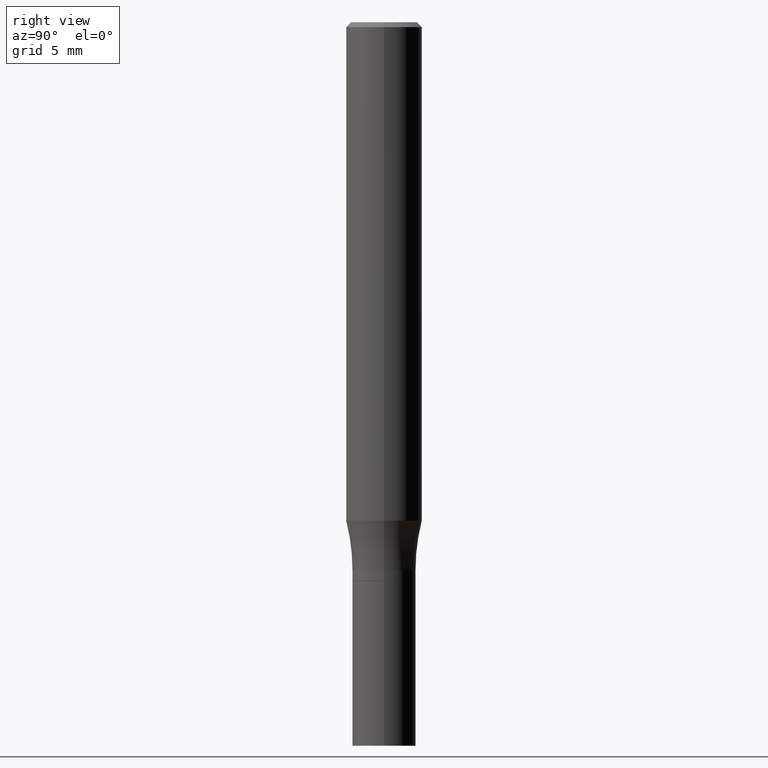
[diagram: clean part render]
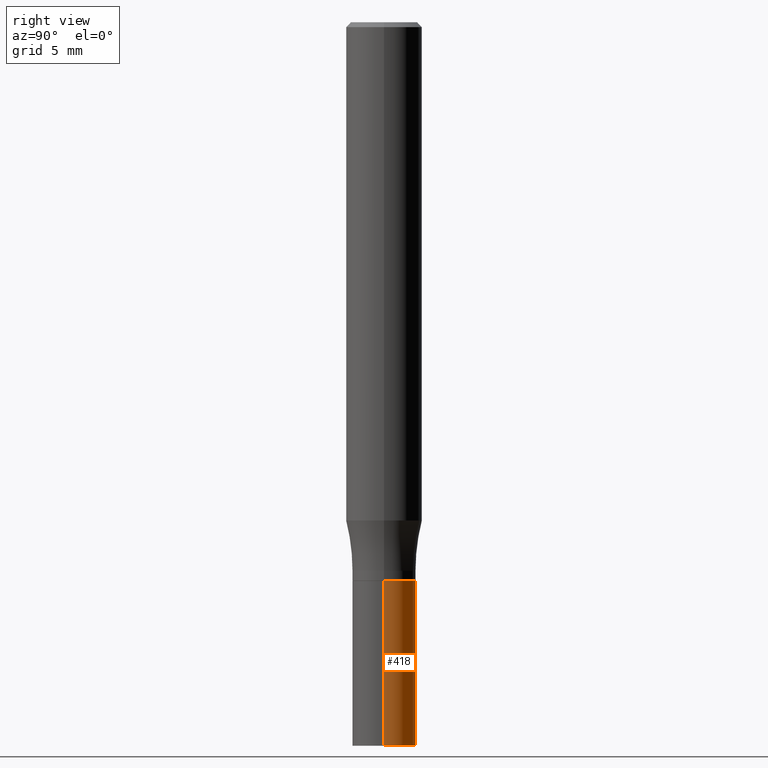
[diagram: same view with one face highlighted and labeled with its STEP entity id]
A machine part, right view. The second image highlights one B-rep face of the part: STEP entity #418.
In plain terms, the highlighted cylindrical surface (edge-blend (fillet) strip) has radius 2.5006 mm, axis along (-0, 0, 1).
Its self-contained STEP definition (entity closure, byte-faithful):
#6 = CARTESIAN_POINT ( 'NONE',  ( 4.236285612954512392E-29, -6.048293123277981078E-15, -1.732299999999999951 ) ) ;
#8 = VECTOR ( 'NONE', #30, 39.37007874015748143 ) ;
#11 = FACE_OUTER_BOUND ( 'NONE', #195, .T. ) ;
#18 = ORIENTED_EDGE ( 'NONE', *, *, #454, .F. ) ;
#21 = AXIS2_PLACEMENT_3D ( 'NONE', #6, #402, #150 ) ;
#29 = AXIS2_PLACEMENT_3D ( 'NONE', #259, #412, #329 ) ;
#30 = DIRECTION ( 'NONE',  ( -2.445468806185136877E-29, 3.491481338843145188E-15, 1.000000000000000000 ) ) ;
#51 = LINE ( 'NONE', #332, #8 ) ;
#71 = DIRECTION ( 'NONE',  ( -2.445468806185136877E-29, 3.491481338843145188E-15, 1.000000000000000000 ) ) ;
#101 = EDGE_CURVE ( 'NONE', #186, #359, #216, .T. ) ;
#133 = CARTESIAN_POINT ( 'NONE',  ( 0.09845000000000000973, -6.735765798896194427E-15, -1.732299999999999951 ) ) ;
#150 = DIRECTION ( 'NONE',  ( 1.000000000000000000, -6.982962677686265133E-15, 0.000000000000000000 ) ) ;
#154 = CARTESIAN_POINT ( 'NONE',  ( -0.09845000000000000973, -6.242233874532123993E-15, -1.732299999999999951 ) ) ;
#156 = ORIENTED_EDGE ( 'NONE', *, *, #101, .T. ) ;
#161 = CARTESIAN_POINT ( 'NONE',  ( 0.09845000000000000973, -8.522705948116114900E-15, -2.244099999999999984 ) ) ;
#186 = VERTEX_POINT ( 'NONE', #161 ) ;
#193 = CYLINDRICAL_SURFACE ( 'NONE', #29, 0.09845000000000000973 ) ;
#195 = EDGE_LOOP ( 'NONE', ( #156, #267, #18, #427 ) ) ;
#197 = VERTEX_POINT ( 'NONE', #154 ) ;
#216 = CIRCLE ( 'NONE', #244, 0.09845000000000000973 ) ;
#236 = EDGE_CURVE ( 'NONE', #186, #307, #51, .T. ) ;
#237 = DIRECTION ( 'NONE',  ( 1.000000000000000000, -6.982962677686265133E-15, 0.000000000000000000 ) ) ;
#244 = AXIS2_PLACEMENT_3D ( 'NONE', #457, #271, #237 ) ;
#259 = CARTESIAN_POINT ( 'NONE',  ( 0.000000000000000000, 0.000000000000000000, 0.000000000000000000 ) ) ;
#267 = ORIENTED_EDGE ( 'NONE', *, *, #315, .T. ) ;
#271 = DIRECTION ( 'NONE',  ( -2.445468806185136597E-29, 3.491481338843145583E-15, 1.000000000000000000 ) ) ;
#307 = VERTEX_POINT ( 'NONE', #133 ) ;
#314 = CARTESIAN_POINT ( 'NONE',  ( -0.09845000000000000973, 6.995293233558187021E-16, -4.842691596355954742E-30 ) ) ;
#315 = EDGE_CURVE ( 'NONE', #359, #197, #317, .T. ) ;
#317 = LINE ( 'NONE', #314, #366 ) ;
#329 = DIRECTION ( 'NONE',  ( 1.000000000000000000, -6.982962677686266711E-15, 4.876176775795935793E-29 ) ) ;
#332 = CARTESIAN_POINT ( 'NONE',  ( 0.09845000000000000973, -6.874726756182130531E-16, 4.800596035771099214E-30 ) ) ;
#359 = VERTEX_POINT ( 'NONE', #445 ) ;
#366 = VECTOR ( 'NONE', #71, 39.37007874015748143 ) ;
#402 = DIRECTION ( 'NONE',  ( -2.445468806185136597E-29, 3.491481338843145583E-15, 1.000000000000000000 ) ) ;
#412 = DIRECTION ( 'NONE',  ( -2.445468806185136597E-29, 3.491481338843145583E-15, 1.000000000000000000 ) ) ;
#418 = ADVANCED_FACE ( 'NONE', ( #11 ), #193, .T. ) ;
#427 = ORIENTED_EDGE ( 'NONE', *, *, #236, .F. ) ;
#445 = CARTESIAN_POINT ( 'NONE',  ( -0.09845000000000000973, -6.242233874532123993E-15, -2.244099999999999984 ) ) ;
#454 = EDGE_CURVE ( 'NONE', #307, #197, #466, .T. ) ;
#457 = CARTESIAN_POINT ( 'NONE',  ( 5.487876547960064752E-29, -7.835233272497902340E-15, -2.244099999999999984 ) ) ;
#466 = CIRCLE ( 'NONE', #21, 0.09845000000000000973 ) ;